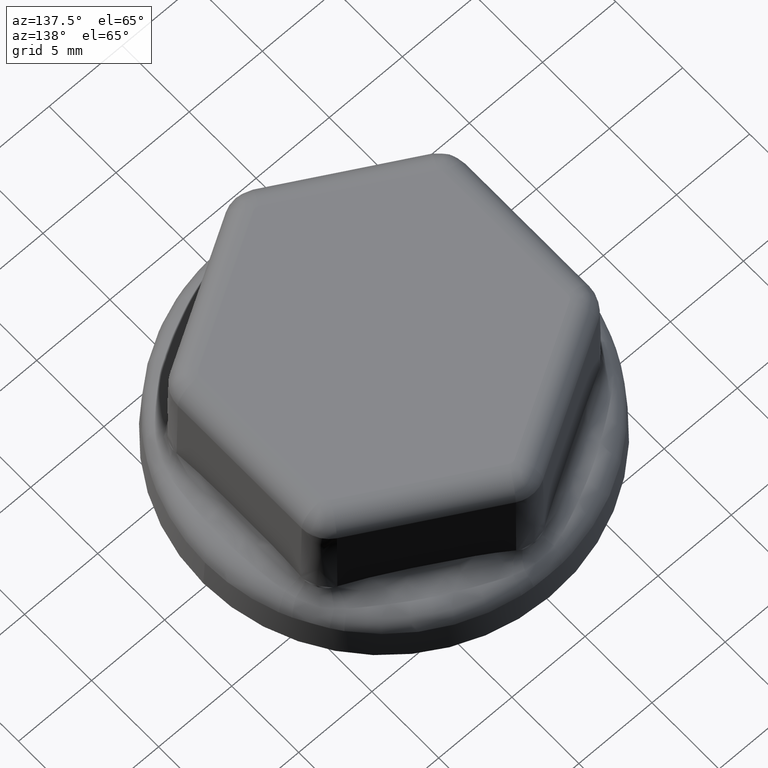
[diagram: clean part render]
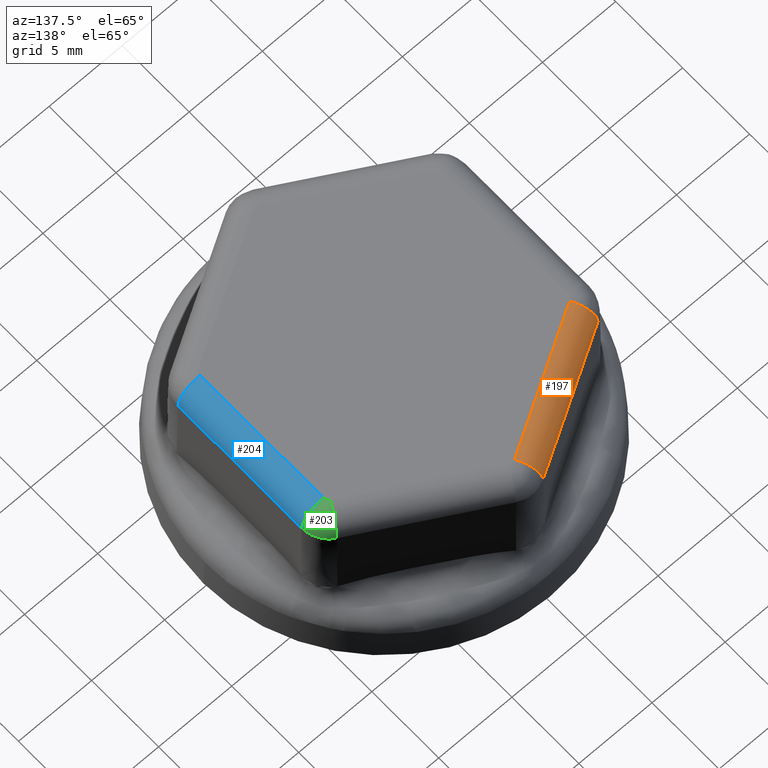
[diagram: same view with three faces highlighted in distinct colors, each labeled with its STEP entity id]
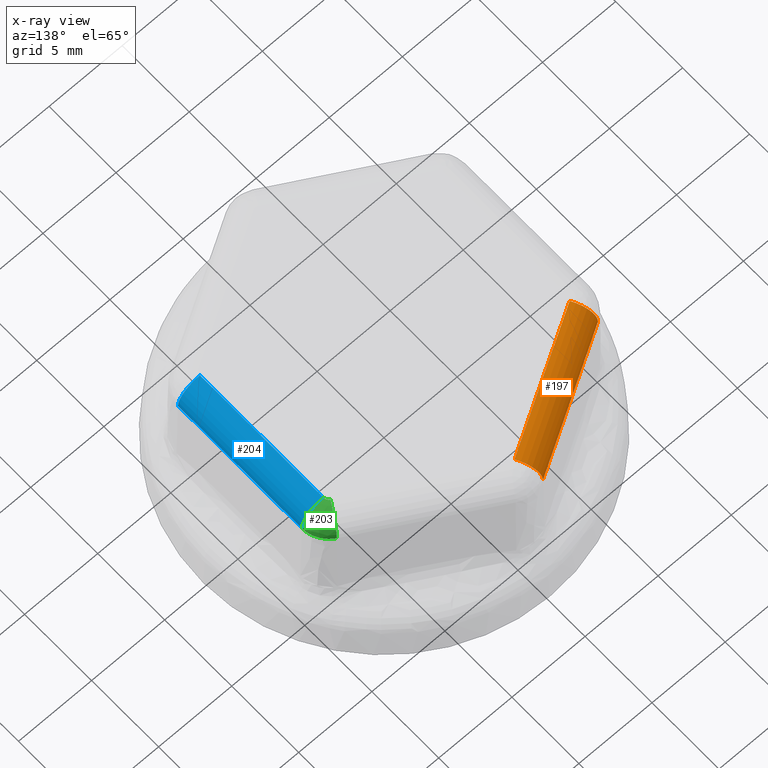
[diagram: x-ray of the same camera — body ghosted, the three highlighted faces saturated]
A machine part, auxiliary view with three faces highlighted in distinct colors.
The next image is the same camera in x-ray (body ghosted, the three faces saturated) — at least one of them is partly hidden behind the body in this view.
Their STEP definitions:

[orange] entity #197 — the highlighted cylindrical surface (edge-blend (fillet) strip) has radius 1.5 mm, axis along (-0.866, -0.5, 0).
#197 = ADVANCED_FACE( '', ( #453 ), #454, .T. );
#453 = FACE_OUTER_BOUND( '', #4972, .T. );
#454 = CYLINDRICAL_SURFACE( '', #4973, 1.50000000000000 );
#4972 = EDGE_LOOP( '', ( #6056, #6057, #6058, #6059 ) );
#4973 = AXIS2_PLACEMENT_3D( '', #6060, #6061, #6062 );
#6056 = ORIENTED_EDGE( '', *, *, #6410, .T. );
#6057 = ORIENTED_EDGE( '', *, *, #6343, .F. );
#6058 = ORIENTED_EDGE( '', *, *, #6409, .F. );
#6059 = ORIENTED_EDGE( '', *, *, #6241, .F. );
#6060 = CARTESIAN_POINT( '', ( -13.6800845323595, 1.75524726605710, 10.1999999999999 ) );
#6061 = DIRECTION( '', ( -0.866025403784439, -0.500000000000000, 1.63397045162558E-014 ) );
#6062 = DIRECTION( '', ( -0.500000000000000, 0.866025403784438, 0.000000000000000 ) );
#6241 = EDGE_CURVE( '', #6636, #6615, #6638, .F. );
#6343 = EDGE_CURVE( '', #6608, #6781, #6808, .T. );
#6409 = EDGE_CURVE( '', #6615, #6608, #6899, .T. );
#6410 = EDGE_CURVE( '', #6636, #6781, #6900, .T. );
#6608 = VERTEX_POINT( '', #7527 );
#6615 = VERTEX_POINT( '', #7609 );
#6636 = VERTEX_POINT( '', #7726 );
#6638 = LINE( '', #7746, #7747 );
#6781 = VERTEX_POINT( '', #8400 );
#6808 = LINE( '', #8581, #8582 );
#6899 = CIRCLE( '', #9175, 1.50000000000000 );
#6900 = CIRCLE( '', #9176, 1.50000000000000 );
#7527 = CARTESIAN_POINT( '', ( -8.92998934047321, 6.22950301161053, 10.2261786096557 ) );
#7609 = CARTESIAN_POINT( '', ( -8.18010355400222, 4.93066276444955, 11.6999999999998 ) );
#7726 = CARTESIAN_POINT( '', ( -0.180027418043291, 9.54950887508293, 11.6999999999997 ) );
#7746 = CARTESIAN_POINT( '', ( -13.9121280822060, 1.62127686008958, 11.6999999999999 ) );
#7747 = VECTOR( '', #9393, 1000.00000000000 );
#8400 = CARTESIAN_POINT( '', ( -0.929913189410598, 10.8483491309640, 10.2261786096556 ) );
#8581 = CARTESIAN_POINT( '', ( -14.4299703037268, 3.05408752193824, 10.2261786096558 ) );
#8582 = VECTOR( '', #9527, 1000.00000000000 );
#9175 = AXIS2_PLACEMENT_3D( '', #9617, #9618, #9619 );
#9176 = AXIS2_PLACEMENT_3D( '', #9620, #9621, #9622 );
#9393 = DIRECTION( '', ( 0.866025403784438, 0.500000000000000, -1.63397045162558E-014 ) );
#9527 = DIRECTION( '', ( 0.866025403784438, 0.500000000000000, -1.63384930584876E-014 ) );
#9617 = CARTESIAN_POINT( '', ( -8.18010355400223, 4.93066276444952, 10.1999999999998 ) );
#9618 = DIRECTION( '', ( -0.866025397970139, -0.500000010070662, 1.61077208570818E-014 ) );
#9619 = DIRECTION( '', ( 0.500000010070662, -0.866025397970139, -8.94158128488354E-031 ) );
#9620 = CARTESIAN_POINT( '', ( -0.180027418043306, 9.54950887508291, 10.1999999999997 ) );
#9621 = DIRECTION( '', ( -0.866025403784435, -0.500000000000006, 1.62642118518585E-014 ) );
#9622 = DIRECTION( '', ( 0.500000000000006, -0.866025403784435, 0.000000000000000 ) );

[blue] entity #204 — the highlighted cylindrical surface (edge-blend (fillet) strip) has radius 1.5 mm, axis along (0, 1, -0).
#204 = ADVANCED_FACE( '', ( #467 ), #468, .T. );
#467 = FACE_OUTER_BOUND( '', #5346, .T. );
#468 = CYLINDRICAL_SURFACE( '', #5347, 1.50000000000000 );
#5346 = EDGE_LOOP( '', ( #6096, #6097, #6098, #6099 ) );
#5347 = AXIS2_PLACEMENT_3D( '', #6100, #6101, #6102 );
#6096 = ORIENTED_EDGE( '', *, *, #6415, .F. );
#6097 = ORIENTED_EDGE( '', *, *, #6237, .F. );
#6098 = ORIENTED_EDGE( '', *, *, #6391, .F. );
#6099 = ORIENTED_EDGE( '', *, *, #6369, .F. );
#6100 = CARTESIAN_POINT( '', ( 8.36013098850838, -4.61884612013811, 10.1999999999998 ) );
#6101 = DIRECTION( '', ( 6.18277510626679E-016, 1.00000000000000, -1.63397045162556E-014 ) );
#6102 = DIRECTION( '', ( 0.000000000000000, -1.63397045162556E-014, -1.00000000000000 ) );
#6237 = EDGE_CURVE( '', #6628, #6630, #6631, .F. );
#6369 = EDGE_CURVE( '', #6839, #6847, #6848, .T. );
#6391 = EDGE_CURVE( '', #6847, #6628, #6878, .T. );
#6415 = EDGE_CURVE( '', #6630, #6839, #6905, .T. );
#6628 = VERTEX_POINT( '', #7680 );
#6630 = VERTEX_POINT( '', #7700 );
#6631 = LINE( '', #7701, #7702 );
#6839 = VERTEX_POINT( '', #8740 );
#6847 = VERTEX_POINT( '', #8834 );
#6848 = LINE( '', #8835, #8836 );
#6878 = CIRCLE( '', #9091, 1.50000000000000 );
#6905 = CIRCLE( '', #9181, 1.50000000000000 );
#7680 = CARTESIAN_POINT( '', ( 8.36013098850840, -4.61884612013822, 11.6999999999998 ) );
#7700 = CARTESIAN_POINT( '', ( 8.36013098850840, 4.61884610113098, 11.6999999999997 ) );
#7701 = CARTESIAN_POINT( '', ( 8.36013098850840, -5.61880895492423, 11.6999999999998 ) );
#7702 = VECTOR( '', #9391, 1000.00000000000 );
#8740 = CARTESIAN_POINT( '', ( 9.85990253124298, 4.61884611856874, 10.2261786096556 ) );
#8834 = CARTESIAN_POINT( '', ( 9.85990253124297, -4.61884612013824, 10.2261786096557 ) );
#8835 = CARTESIAN_POINT( '', ( 9.85990253124297, -4.61884612013811, 10.2261786096557 ) );
#8836 = VECTOR( '', #9555, 1000.00000000000 );
#9091 = AXIS2_PLACEMENT_3D( '', #9581, #9582, #9583 );
#9181 = AXIS2_PLACEMENT_3D( '', #9635, #9636, #9637 );
#9391 = DIRECTION( '', ( -6.18277510626679E-016, -1.00000000000000, 1.63397045162556E-014 ) );
#9555 = DIRECTION( '', ( -6.18277510626679E-016, -1.00000000000000, 1.63397045162556E-014 ) );
#9581 = CARTESIAN_POINT( '', ( 8.36013098850838, -4.61884612013824, 10.1999999999998 ) );
#9582 = DIRECTION( '', ( -8.60939876123201E-016, -1.00000000000000, 1.61907524424502E-014 ) );
#9583 = DIRECTION( '', ( 0.000000000000000, -1.61907524424502E-014, -1.00000000000000 ) );
#9635 = CARTESIAN_POINT( '', ( 8.36013098850839, 4.61884610113095, 10.1999999999997 ) );
#9636 = DIRECTION( '', ( -1.16269626885502E-008, 1.00000000000000, -1.61907523348792E-014 ) );
#9637 = DIRECTION( '', ( -1.00000000000000, -1.16269626885502E-008, 0.000000000000000 ) );

[green] entity #203 — the highlighted face is a freeform B-spline surface patch.
#203 = ADVANCED_FACE( '', ( #465 ), #466, .T. );
#465 = FACE_OUTER_BOUND( '', #5224, .T. );
#466 = ( B_SPLINE_SURFACE( 3, 2, ( ( #5226, #5227, #5228 ), ( #5229, #5230, #5231 ), ( #5232, #5233, #5234 ), ( #5235, #5236, #5237 ), ( #5238, #5239, #5240 ), ( #5241, #5242, #5243 ), ( #5244, #5245, #5246 ), ( #5247, #5248, #5249 ), ( #5250, #5251, #5252 ), ( #5253, #5254, #5255 ), ( #5256, #5257, #5258 ), ( #5259, #5260, #5261 ), ( #5262, #5263, #5264 ), ( #5265, #5266, #5267 ), ( #5268, #5269, #5270 ), ( #5271, #5272, #5273 ), ( #5274, #5275, #5276 ), ( #5277, #5278, #5279 ), ( #5280, #5281, #5282 ), ( #5283, #5284, #5285 ), ( #5286, #5287, #5288 ), ( #5289, #5290, #5291 ), ( #5292, #5293, #5294 ), ( #5295, #5296, #5297 ), ( #5298, #5299, #5300 ), ( #5301, #5302, #5303 ), ( #5304, #5305, #5306 ), ( #5307, #5308, #5309 ), ( #5310, #5311, #5312 ), ( #5313, #5314, #5315 ), ( #5316, #5317, #5318 ), ( #5319, #5320, #5321 ), ( #5322, #5323, #5324 ), ( #5325, #5326, #5327 ), ( #5328, #5329, #5330 ), ( #5331, #5332, #5333 ), ( #5334, #5335, #5336 ), ( #5337, #5338, #5339 ) ), .UNSPECIFIED., .F., .F., .F. )B_SPLINE_SURFACE_WITH_KNOTS( ( 4, 2, 2, 2, 2, 2, 2, 2, 2, 2, 2, 2, 2, 2, 2, 2, 2, 2, 4 ), ( 3, 3 ), ( 0.000000000000000, 2.33864130442619E-005, 4.67728260885238E-005, 7.01592391327857E-005, 9.35456521770477E-005, 0.000116932065221310, 0.000128625271743441, 0.000140318478265571, 0.000163704891309833, 0.000187091304354095, 0.000210477717398357, 0.000233864130442619, 0.000245557336964750, 0.000257250543486881, 0.000280636956531143, 0.000304023369575405, 0.000327409782619667, 0.000350796195663929, 0.000374182608708191 ), ( 0.000000000000000, 1.00000000000000 ), .UNSPECIFIED. )RATIONAL_B_SPLINE_SURFACE( ( ( 1.00000000000000, 0.713250449154188, 1.00000000000000 ), ( 1.00000000000000, 0.713250449056964, 1.00000000000000 ), ( 1.00000000000000, 0.713250281259081, 1.00000000000000 ), ( 1.00000000000000, 0.713249739837601, 1.00000000000000 ), ( 1.00000000000000, 0.713249366715003, 1.00000000000000 ), ( 1.00000000000000, 0.713248526825471, 1.00000000000000 ), ( 1.00000000000000, 0.713248059874499, 1.00000000000000 ), ( 1.00000000000000, 0.713247116315286, 1.00000000000000 ), ( 1.00000000000000, 0.713246639389938, 1.00000000000000 ), ( 1.00000000000000, 0.713245736187083, 1.00000000000000 ), ( 1.00000000000000, 0.713245309626907, 1.00000000000000 ), ( 1.00000000000000, 0.713244739841402, 1.00000000000000 ), ( 1.00000000000000, 0.713244562024733, 1.00000000000000 ), ( 1.00000000000000, 0.713244235189047, 1.00000000000000 ), ( 1.00000000000000, 0.713244085955923, 1.00000000000000 ), ( 1.00000000000000, 0.713243684616475, 1.00000000000000 ), ( 1.00000000000000, 0.713243479094120, 1.00000000000000 ), ( 1.00000000000000, 0.713243204468689, 1.00000000000000 ), ( 1.00000000000000, 0.713243135292606, 1.00000000000000 ), ( 1.00000000000000, 0.713243137432717, 1.00000000000000 ), ( 1.00000000000000, 0.713243208751326, 1.00000000000000 ), ( 1.00000000000000, 0.713243488789027, 1.00000000000000 ), ( 1.00000000000000, 0.713243697588390, 1.00000000000000 ), ( 1.00000000000000, 0.713244105367255, 1.00000000000000 ), ( 1.00000000000000, 0.713244256729970, 1.00000000000000 ), ( 1.00000000000000, 0.713244585782652, 1.00000000000000 ), ( 1.00000000000000, 0.713244763674149, 1.00000000000000 ), ( 1.00000000000000, 0.713245331332999, 1.00000000000000 ), ( 1.00000000000000, 0.713245755657983, 1.00000000000000 ), ( 1.00000000000000, 0.713246653889485, 1.00000000000000 ), ( 1.00000000000000, 0.713247128082666, 1.00000000000000 ), ( 1.00000000000000, 0.713248066704681, 1.00000000000000 ), ( 1.00000000000000, 0.713248531461304, 1.00000000000000 ), ( 1.00000000000000, 0.713249368190106, 1.00000000000000 ), ( 1.00000000000000, 0.713249740367317, 1.00000000000000 ), ( 1.00000000000000, 0.713250281038650, 1.00000000000000 ), ( 1.00000000000000, 0.713250449028450, 1.00000000000000 ), ( 1.00000000000000, 0.713250449154185, 1.00000000000000 ) ) )BOUNDED_SURFACE(  )REPRESENTATION_ITEM( '' )GEOMETRIC_REPRESENTATION_ITEM(  )SURFACE(  ) );
#5224 = EDGE_LOOP( '', ( #6092, #6093, #6094, #6095 ) );
#5226 = CARTESIAN_POINT( '', ( 8.18010355535848, 4.93066276366651, 11.6999999999997 ) );
#5227 = CARTESIAN_POINT( '', ( 8.91712651754274, 6.20722394622572, 11.6999999999996 ) );
#5228 = CARTESIAN_POINT( '', ( 8.92998934183239, 6.22950301082580, 10.2261786096556 ) );
#5229 = CARTESIAN_POINT( '', ( 8.18696521326384, 4.92670114918654, 11.6999999999997 ) );
#5230 = CARTESIAN_POINT( '', ( 8.95698060359868, 6.18421381584256, 11.6999999999996 ) );
#5231 = CARTESIAN_POINT( '', ( 8.97041937991031, 6.20616071672566, 10.2261786148913 ) );
#5232 = CARTESIAN_POINT( '', ( 8.19362531905232, 4.92250182210447, 11.6999999999997 ) );
#5233 = CARTESIAN_POINT( '', ( 8.99497474670201, 6.16022151111242, 11.6999999999997 ) );
#5234 = CARTESIAN_POINT( '', ( 9.00895994494755, 6.18182221140368, 10.2261778937223 ) );
#5235 = CARTESIAN_POINT( '', ( 8.20657229304891, 4.91366316218605, 11.6999999999997 ) );
#5236 = CARTESIAN_POINT( '', ( 9.06743213128285, 6.11075913620797, 11.6999999999996 ) );
#5237 = CARTESIAN_POINT( '', ( 9.08245440473559, 6.13164878167851, 10.2261755715602 ) );
#5238 = CARTESIAN_POINT( '', ( 8.21285917763893, 4.90902381457905, 11.6999999999997 ) );
#5239 = CARTESIAN_POINT( '', ( 9.10189669980854, 6.08529044502839, 11.6999999999996 ) );
#5240 = CARTESIAN_POINT( '', ( 9.11740990508059, 6.10581556437638, 10.2261739794510 ) );
#5241 = CARTESIAN_POINT( '', ( 8.22508272202058, 4.89933217915935, 11.6999999999997 ) );
#5242 = CARTESIAN_POINT( '', ( 9.16764794991107, 6.03316318603268, 11.6999999999996 ) );
#5243 = CARTESIAN_POINT( '', ( 9.18409276946660, 6.05294492779048, 10.2261703809614 ) );
#5244 = CARTESIAN_POINT( '', ( 8.23101933657141, 4.89427983800641, 11.6999999999997 ) );
#5245 = CARTESIAN_POINT( '', ( 9.19893749609443, 6.00650245454763, 11.6999999999996 ) );
#5246 = CARTESIAN_POINT( '', ( 9.21582349142106, 6.02590587012902, 10.2261683862897 ) );
#5247 = CARTESIAN_POINT( '', ( 8.24255802728912, 4.88378071090549, 11.6999999999997 ) );
#5248 = CARTESIAN_POINT( '', ( 9.25873205927396, 5.95210052792063, 11.6999999999996 ) );
#5249 = CARTESIAN_POINT( '', ( 9.27645705194963, 5.97073502626749, 10.2261643452486 ) );
#5250 = CARTESIAN_POINT( '', ( 8.24816006798348, 4.87833388313336, 11.6999999999997 ) );
#5251 = CARTESIAN_POINT( '', ( 9.28723783209932, 5.92435793568241, 11.6999999999996 ) );
#5252 = CARTESIAN_POINT( '', ( 9.30536101584154, 5.94260221456637, 10.2261623068231 ) );
#5253 = CARTESIAN_POINT( '', ( 8.25903849057844, 4.86705625247014, 11.6999999999997 ) );
#5254 = CARTESIAN_POINT( '', ( 9.34181914676310, 5.86777923844883, 11.6999999999996 ) );
#5255 = CARTESIAN_POINT( '', ( 9.36070170176738, 5.88523073712629, 10.2261584395452 ) );
#5256 = CARTESIAN_POINT( '', ( 8.26431485772215, 4.86122543217965, 11.6999999999997 ) );
#5257 = CARTESIAN_POINT( '', ( 9.36789453549190, 5.83894254867403, 11.6999999999996 ) );
#5258 = CARTESIAN_POINT( '', ( 9.38713851976062, 5.85599172346048, 10.2261566156507 ) );
#5259 = CARTESIAN_POINT( '', ( 8.27198694393406, 4.85219331867083, 11.6999999999997 ) );
#5260 = CARTESIAN_POINT( '', ( 9.40540347719872, 5.79478819065309, 11.6999999999997 ) );
#5261 = CARTESIAN_POINT( '', ( 9.42516585507442, 5.81122336957759, 10.2261541764652 ) );
#5262 = CARTESIAN_POINT( '', ( 8.27449641570498, 4.84914345760917, 11.6999999999997 ) );
#5263 = CARTESIAN_POINT( '', ( 9.41760202325719, 5.77996153260811, 11.6999999999996 ) );
#5264 = CARTESIAN_POINT( '', ( 9.43753279512969, 5.79619092713359, 10.2261534162936 ) );
#5265 = CARTESIAN_POINT( '', ( 8.27940628337869, 4.84298593939860, 11.6999999999997 ) );
#5266 = CARTESIAN_POINT( '', ( 9.44136054573389, 5.75016795966974, 11.6999999999996 ) );
#5267 = CARTESIAN_POINT( '', ( 9.46161882528615, 5.76598436200698, 10.2261520165703 ) );
#5268 = CARTESIAN_POINT( '', ( 8.28180916200565, 4.83987534471820, 11.6999999999997 ) );
#5269 = CARTESIAN_POINT( '', ( 9.45293242536663, 5.73518683233691, 11.6999999999996 ) );
#5270 = CARTESIAN_POINT( '', ( 9.47335010557226, 5.75079592789864, 10.2261513788527 ) );
#5271 = CARTESIAN_POINT( '', ( 8.28886486612959, 4.83045003170184, 11.6999999999997 ) );
#5272 = CARTESIAN_POINT( '', ( 9.48678873240190, 5.68996298989023, 11.6999999999996 ) );
#5273 = CARTESIAN_POINT( '', ( 9.50767224463582, 5.70494692578615, 10.2261496601356 ) );
#5274 = CARTESIAN_POINT( '', ( 8.29336498136063, 4.82404191984862, 11.6999999999997 ) );
#5275 = CARTESIAN_POINT( '', ( 9.50821585024231, 5.65944154675550, 11.6999999999996 ) );
#5276 = CARTESIAN_POINT( '', ( 9.52939378689762, 5.67400466999019, 10.2261487817685 ) );
#5277 = CARTESIAN_POINT( '', ( 8.30196817318872, 4.81098287792523, 11.6999999999997 ) );
#5278 = CARTESIAN_POINT( '', ( 9.54903923632032, 5.59747664533963, 11.6999999999996 ) );
#5279 = CARTESIAN_POINT( '', ( 9.57077784084202, 5.61118657728875, 10.2261476058038 ) );
#5280 = CARTESIAN_POINT( '', ( 8.30607121937125, 4.80433192925428, 11.6999999999997 ) );
#5281 = CARTESIAN_POINT( '', ( 9.56843473013705, 5.56603365351988, 11.6999999999996 ) );
#5282 = CARTESIAN_POINT( '', ( 9.59043966743542, 5.57931128615973, 10.2261473100698 ) );
#5283 = CARTESIAN_POINT( '', ( 8.31388234307843, 4.79078847963746, 11.6999999999997 ) );
#5284 = CARTESIAN_POINT( '', ( 9.60536288710032, 5.50200512252344, 11.6999999999996 ) );
#5285 = CARTESIAN_POINT( '', ( 9.62787539260785, 5.51440272993767, 10.2261473193402 ) );
#5286 = CARTESIAN_POINT( '', ( 8.31759043018801, 4.78389598455341, 11.6999999999997 ) );
#5287 = CARTESIAN_POINT( '', ( 9.62289520633604, 5.46942033984840, 11.6999999999996 ) );
#5288 = CARTESIAN_POINT( '', ( 9.64564892284105, 5.48137022715966, 10.2261476240151 ) );
#5289 = CARTESIAN_POINT( '', ( 8.32460577303026, 4.76986585662820, 11.6999999999997 ) );
#5290 = CARTESIAN_POINT( '', ( 9.65618633056846, 5.40283805883970, 11.6999999999996 ) );
#5291 = CARTESIAN_POINT( '', ( 9.67939919243840, 5.41387240014596, 10.2261488233735 ) );
#5292 = CARTESIAN_POINT( '', ( 8.32791308000725, 4.76272825512658, 11.6999999999997 ) );
#5293 = CARTESIAN_POINT( '', ( 9.67194525441622, 5.36884158858923, 11.6999999999996 ) );
#5294 = CARTESIAN_POINT( '', ( 9.69537590311779, 5.37940805032644, 10.2261497155193 ) );
#5295 = CARTESIAN_POINT( '', ( 8.33256263665281, 4.75183140662070, 11.6999999999997 ) );
#5296 = CARTESIAN_POINT( '', ( 9.69426047644398, 5.31653847538219, 11.6999999999996 ) );
#5297 = CARTESIAN_POINT( '', ( 9.71800075777114, 5.32638376795968, 10.2261514619874 ) );
#5298 = CARTESIAN_POINT( '', ( 8.33405687272343, 4.74817545356496, 11.6999999999997 ) );
#5299 = CARTESIAN_POINT( '', ( 9.70146027184549, 5.29892436113697, 11.6999999999996 ) );
#5300 = CARTESIAN_POINT( '', ( 9.72530058115210, 5.30852652751566, 10.2261521090837 ) );
#5301 = CARTESIAN_POINT( '', ( 8.33692131579489, 4.74084775719160, 11.6999999999997 ) );
#5302 = CARTESIAN_POINT( '', ( 9.71532515368464, 5.26345193581111, 11.6999999999996 ) );
#5303 = CARTESIAN_POINT( '', ( 9.73935856717228, 5.27256390472056, 10.2261535176351 ) );
#5304 = CARTESIAN_POINT( '', ( 8.33829355707700, 4.73717129187535, 11.6999999999997 ) );
#5305 = CARTESIAN_POINT( '', ( 9.72199998077211, 5.24557124267296, 11.6999999999996 ) );
#5306 = CARTESIAN_POINT( '', ( 9.74612652390202, 5.25443580059980, 10.2261542784211 ) );
#5307 = CARTESIAN_POINT( '', ( 8.34223052209295, 4.72610408280778, 11.6999999999997 ) );
#5308 = CARTESIAN_POINT( '', ( 9.74125338850537, 5.19144068649104, 11.6999999999996 ) );
#5309 = CARTESIAN_POINT( '', ( 9.76564929875402, 5.19955517826584, 10.2261567086125 ) );
#5310 = CARTESIAN_POINT( '', ( 8.34461578901851, 4.71867558946950, 11.6999999999997 ) );
#5311 = CARTESIAN_POINT( '', ( 9.75306419279562, 5.15470372710950, 11.6999999999996 ) );
#5312 = CARTESIAN_POINT( '', ( 9.77762607576343, 5.16230765004857, 10.2261585228000 ) );
#5313 = CARTESIAN_POINT( '', ( 8.34890133094803, 4.70371658245202, 11.6999999999997 ) );
#5314 = CARTESIAN_POINT( '', ( 9.77456951503101, 5.07962373738826, 11.6999999999996 ) );
#5315 = CARTESIAN_POINT( '', ( 9.79943546779170, 5.08618020729803, 10.2261623689441 ) );
#5316 = CARTESIAN_POINT( '', ( 8.35080164178804, 4.69618607631118, 11.6999999999997 ) );
#5317 = CARTESIAN_POINT( '', ( 9.78426470530070, 5.04128059457372, 11.6999999999996 ) );
#5318 = CARTESIAN_POINT( '', ( 9.80926840320515, 5.04730007731701, 10.2261643955323 ) );
#5319 = CARTESIAN_POINT( '', ( 8.35410131168270, 4.68101968645595, 11.6999999999997 ) );
#5320 = CARTESIAN_POINT( '', ( 9.80136309311484, 4.96267155658857, 11.6999999999997 ) );
#5321 = CARTESIAN_POINT( '', ( 9.82661153828355, 4.96758520730138, 10.2261684155941 ) );
#5322 = CARTESIAN_POINT( '', ( 8.35550073882292, 4.67338381706367, 11.6999999999997 ) );
#5323 = CARTESIAN_POINT( '', ( 9.80876722743938, 4.92240437080120, 11.6999999999996 ) );
#5324 = CARTESIAN_POINT( '', ( 9.83412214436254, 4.92674903823058, 10.2261704007157 ) );
#5325 = CARTESIAN_POINT( '', ( 8.35777226459386, 4.65800115223713, 11.6999999999997 ) );
#5326 = CARTESIAN_POINT( '', ( 9.82098303041449, 4.83965448993929, 11.6999999999996 ) );
#5327 = CARTESIAN_POINT( '', ( 9.84651518442923, 4.84282427606217, 10.2261739858484 ) );
#5328 = CARTESIAN_POINT( '', ( 8.35864444867017, 4.65025437477674, 11.6999999999997 ) );
#5329 = CARTESIAN_POINT( '', ( 9.82579527952024, 4.79716827029971, 11.6999999999996 ) );
#5330 = CARTESIAN_POINT( '', ( 9.85139747030203, 4.79973199030066, 10.2261755737250 ) );
#5331 = CARTESIAN_POINT( '', ( 8.35982378420196, 4.63464196257610, 11.6999999999997 ) );
#5332 = CARTESIAN_POINT( '', ( 9.83239290348551, 4.70979464184530, 11.6999999999997 ) );
#5333 = CARTESIAN_POINT( '', ( 9.85809222278461, 4.71110624018026, 10.2261778928811 ) );
#5334 = CARTESIAN_POINT( '', ( 8.36013095650446, 4.62677630367464, 11.6999999999997 ) );
#5335 = CARTESIAN_POINT( '', ( 9.83417655604484, 4.66490660508250, 11.6999999999995 ) );
#5336 = CARTESIAN_POINT( '', ( 9.85990253060448, 4.66557206497364, 10.2261786151111 ) );
#5337 = CARTESIAN_POINT( '', ( 8.36013098850841, 4.61884609345402, 11.6999999999997 ) );
#5338 = CARTESIAN_POINT( '', ( 9.83417688318193, 4.61884611059270, 11.6999999999996 ) );
#5339 = CARTESIAN_POINT( '', ( 9.85990253124298, 4.61884611089179, 10.2261786096556 ) );
#6092 = ORIENTED_EDGE( '', *, *, #6415, .T. );
#6093 = ORIENTED_EDGE( '', *, *, #6366, .F. );
#6094 = ORIENTED_EDGE( '', *, *, #6414, .F. );
#6095 = ORIENTED_EDGE( '', *, *, #6238, .F. );
#6238 = EDGE_CURVE( '', #6630, #6632, #6633, .T. );
#6366 = EDGE_CURVE( '', #6834, #6839, #6842, .T. );
#6414 = EDGE_CURVE( '', #6632, #6834, #6904, .T. );
#6415 = EDGE_CURVE( '', #6630, #6839, #6905, .T. );
#6630 = VERTEX_POINT( '', #7700 );
#6632 = VERTEX_POINT( '', #7703 );
#6633 = B_SPLINE_CURVE_WITH_KNOTS( '', 3, ( #7704, #7705, #7706, #7707, #7708, #7709, #7710, #7711, #7712, #7713, #7714, #7715, #7716, #7717, #7718, #7719, #7720, #7721, #7722 ), .UNSPECIFIED., .F., .F., ( 4, 1, 2, 2, 2, 1, 2, 2, 2, 1, 4 ), ( 1.73472347597681E-018, 4.65624471471842E-005, 9.31248942943667E-005, 0.000116406117867957, 0.000139687341441548, 0.000186249788588731, 0.000232812235735915, 0.000256093459309506, 0.000279374682883098, 0.000325937130030281, 0.000372499577177465 ), .UNSPECIFIED. );
#6834 = VERTEX_POINT( '', #8730 );
#6839 = VERTEX_POINT( '', #8740 );
#6842 = B_SPLINE_CURVE_WITH_KNOTS( '', 3, ( #8760, #8761, #8762, #8763, #8764, #8765, #8766, #8767, #8768, #8769, #8770, #8771, #8772, #8773, #8774, #8775, #8776, #8777, #8778, #8779, #8780, #8781, #8782, #8783, #8784, #8785, #8786, #8787, #8788, #8789, #8790, #8791, #8792, #8793, #8794 ), .UNSPECIFIED., .F., .F., ( 4, 2, 1, 1, 1, 1, 1, 1, 2, 2, 2, 2, 2, 2, 2, 1, 2, 2, 2, 2, 4 ), ( -5.99999999730719E-008, 1.83229614357188E-006, 3.72459228711682E-006, 7.50918457420672E-006, 1.50783691483878E-005, 3.02167382967513E-005, 6.04934765934751E-005, 0.000121046953186921, 0.000242153906373818, 0.000484367812747612, 0.000605474765934509, 0.000666028242527960, 0.000726581719121411, 0.000968795625495217, 0.00108990257868212, 0.00115045605527557, 0.00118073279357229, 0.00121100953186902, 0.00145322343824280, 0.00169543734461657, 0.00193765125099035 ), .UNSPECIFIED. );
#6904 = CIRCLE( '', #9180, 1.50000000000000 );
#6905 = CIRCLE( '', #9181, 1.50000000000000 );
#7700 = CARTESIAN_POINT( '', ( 8.36013098850840, 4.61884610113098, 11.6999999999997 ) );
#7703 = CARTESIAN_POINT( '', ( 8.18010357046511, 4.93066275494470, 11.6999999999997 ) );
#7704 = CARTESIAN_POINT( '', ( 8.36013098850841, 4.61884610113098, 11.6999999999997 ) );
#7705 = CARTESIAN_POINT( '', ( 8.36013098832400, 4.63470659108155, 11.6999999999997 ) );
#7706 = CARTESIAN_POINT( '', ( 8.35768580324703, 4.66591321480394, 11.6999999999997 ) );
#7707 = CARTESIAN_POINT( '', ( 8.35104410803625, 4.69623708275359, 11.6999999999997 ) );
#7708 = CARTESIAN_POINT( '', ( 8.34461578536436, 4.71867558963221, 11.6999999999997 ) );
#7709 = CARTESIAN_POINT( '', ( 8.34223052239368, 4.72610408326930, 11.6999999999997 ) );
#7710 = CARTESIAN_POINT( '', ( 8.33698123519549, 4.74086036084664, 11.6999999999997 ) );
#7711 = CARTESIAN_POINT( '', ( 8.33411249499445, 4.74819912613088, 11.6999999999997 ) );
#7712 = CARTESIAN_POINT( '', ( 8.32481336538128, 4.76999281128468, 11.6999999999997 ) );
#7713 = CARTESIAN_POINT( '', ( 8.31076265510116, 4.79804081812663, 11.6999999999997 ) );
#7714 = CARTESIAN_POINT( '', ( 8.29356866402900, 4.82416647844556, 11.6999999999997 ) );
#7715 = CARTESIAN_POINT( '', ( 8.27945727039631, 4.84301711154074, 11.6999999999997 ) );
#7716 = CARTESIAN_POINT( '', ( 8.27454431214552, 4.84918260722371, 11.6999999999997 ) );
#7717 = CARTESIAN_POINT( '', ( 8.26431486431815, 4.86122542412915, 11.6999999999997 ) );
#7718 = CARTESIAN_POINT( '', ( 8.25903849623020, 4.86705624249508, 11.6999999999997 ) );
#7719 = CARTESIAN_POINT( '', ( 8.24272086899490, 4.88397269393615, 11.6999999999997 ) );
#7720 = CARTESIAN_POINT( '', ( 8.21966789640033, 4.90499972479290, 11.6999999999997 ) );
#7721 = CARTESIAN_POINT( '', ( 8.19382696278310, 4.92273954944191, 11.6999999999997 ) );
#7722 = CARTESIAN_POINT( '', ( 8.18010357046511, 4.93066275494470, 11.6999999999997 ) );
#8730 = CARTESIAN_POINT( '', ( 8.92998934183239, 6.22950301082581, 10.2261786096556 ) );
#8740 = CARTESIAN_POINT( '', ( 9.85990253124298, 4.61884611856874, 10.2261786096556 ) );
#8760 = CARTESIAN_POINT( '', ( 8.92998934183239, 6.22950301082580, 10.2261786096556 ) );
#8761 = CARTESIAN_POINT( '', ( 8.93053560067117, 6.22918762812612, 10.2261786098342 ) );
#8762 = CARTESIAN_POINT( '', ( 8.93109769782225, 6.22886270858131, 10.2261786095203 ) );
#8763 = CARTESIAN_POINT( '', ( 8.93220618885136, 6.22822114881899, 10.2261786089799 ) );
#8764 = CARTESIAN_POINT( '', ( 8.93386825875007, 6.22725801476688, 10.2261786077646 ) );
#8765 = CARTESIAN_POINT( '', ( 8.93774175837343, 6.22500514474184, 10.2261786021078 ) );
#8766 = CARTESIAN_POINT( '', ( 8.94547012783514, 6.22047720447501, 10.2261785795995 ) );
#8767 = CARTESIAN_POINT( '', ( 8.96085253720886, 6.21133274899967, 10.2261784905315 ) );
#8768 = CARTESIAN_POINT( '', ( 8.99132150265935, 6.19269128393520, 10.2261781420874 ) );
#8769 = CARTESIAN_POINT( '', ( 9.05108692981023, 6.15401113759952, 10.2261768121527 ) );
#8770 = CARTESIAN_POINT( '', ( 9.10033875038977, 6.11850239379521, 10.2261747594520 ) );
#8771 = CARTESIAN_POINT( '', ( 9.19626776525550, 6.04441684808665, 10.2261699112835 ) );
#8772 = CARTESIAN_POINT( '', ( 9.25679881059509, 5.99094909119977, 10.2261657030204 ) );
#8773 = CARTESIAN_POINT( '', ( 9.34249630667548, 5.90467113743659, 10.2261597115564 ) );
#8774 = CARTESIAN_POINT( '', ( 9.37020952728829, 5.87489580355770, 10.2261577651057 ) );
#8775 = CARTESIAN_POINT( '', ( 9.41047813333966, 5.82868219572422, 10.2261551084773 ) );
#8776 = CARTESIAN_POINT( '', ( 9.42370039918395, 5.81299738673999, 10.2261542655891 ) );
#8777 = CARTESIAN_POINT( '', ( 9.44953446508315, 5.78131743221124, 10.2261527038146 ) );
#8778 = CARTESIAN_POINT( '', ( 9.46216502809037, 5.76530209872903, 10.2261519836086 ) );
#8779 = CARTESIAN_POINT( '', ( 9.52390549606277, 5.68436089440557, 10.2261487342521 ) );
#8780 = CARTESIAN_POINT( '', ( 9.56879904665734, 5.61685407580492, 10.2261473020259 ) );
#8781 = CARTESIAN_POINT( '', ( 9.62951948326814, 5.51154162958466, 10.2261473210955 ) );
#8782 = CARTESIAN_POINT( '', ( 9.64865223346620, 5.47575961336253, 10.2261476803735 ) );
#8783 = CARTESIAN_POINT( '', ( 9.67566945420610, 5.42105704847866, 10.2261487256883 ) );
#8784 = CARTESIAN_POINT( '', ( 9.68875720219261, 5.39344814446829, 10.2261493741600 ) );
#8785 = CARTESIAN_POINT( '', ( 9.70120613477464, 5.36544820378445, 10.2261501997922 ) );
#8786 = CARTESIAN_POINT( '', ( 9.70936236581903, 5.34669400728370, 10.2261507877826 ) );
#8787 = CARTESIAN_POINT( '', ( 9.71337254442310, 5.33726442980795, 10.2261511008957 ) );
#8788 = CARTESIAN_POINT( '', ( 9.74872894533286, 5.25220989981905, 10.2261540718653 ) );
#8789 = CARTESIAN_POINT( '', ( 9.77486083888685, 5.17552848267454, 10.2261578193618 ) );
#8790 = CARTESIAN_POINT( '', ( 9.81692682723112, 5.02009106877380, 10.2261657589608 ) );
#8791 = CARTESIAN_POINT( '', ( 9.83285863098266, 4.94133460594189, 10.2261699411859 ) );
#8792 = CARTESIAN_POINT( '', ( 9.85434540576676, 4.78171067897050, 10.2261763771206 ) );
#8793 = CARTESIAN_POINT( '', ( 9.85990253028948, 4.70084365292351, 10.2261786096626 ) );
#8794 = CARTESIAN_POINT( '', ( 9.85990253124298, 4.61884611856874, 10.2261786096556 ) );
#9180 = AXIS2_PLACEMENT_3D( '', #9632, #9633, #9634 );
#9181 = AXIS2_PLACEMENT_3D( '', #9635, #9636, #9637 );
#9632 = CARTESIAN_POINT( '', ( 8.18010357046509, 4.93066275494467, 10.1999999999997 ) );
#9633 = DIRECTION( '', ( -0.866025403784438, 0.500000000000001, -8.30316946269342E-017 ) );
#9634 = DIRECTION( '', ( -0.500000000000001, -0.866025403784438, 0.000000000000000 ) );
#9635 = CARTESIAN_POINT( '', ( 8.36013098850839, 4.61884610113095, 10.1999999999997 ) );
#9636 = DIRECTION( '', ( -1.16269626885502E-008, 1.00000000000000, -1.61907523348792E-014 ) );
#9637 = DIRECTION( '', ( -1.00000000000000, -1.16269626885502E-008, 0.000000000000000 ) );